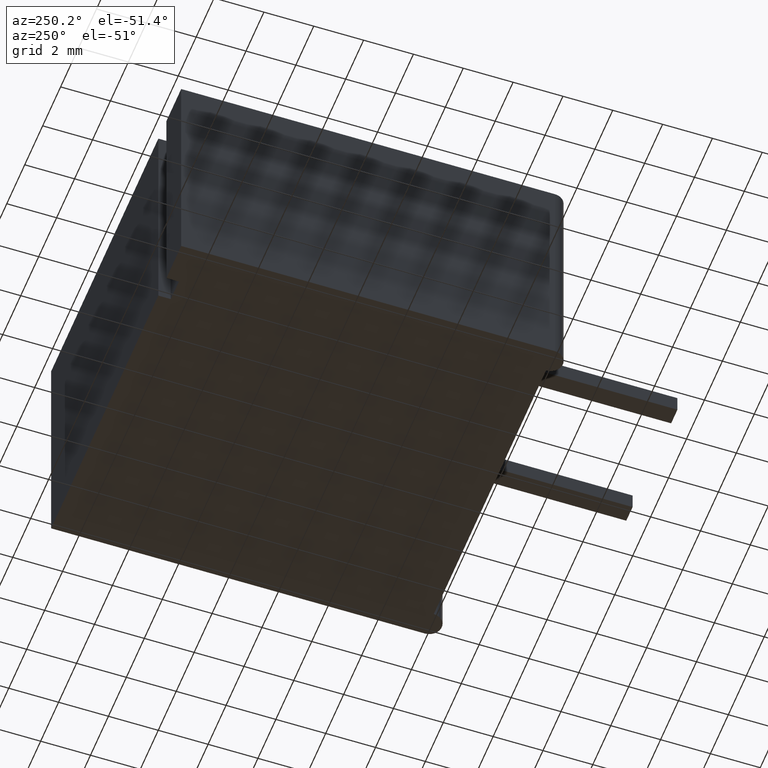
[diagram: clean part render]
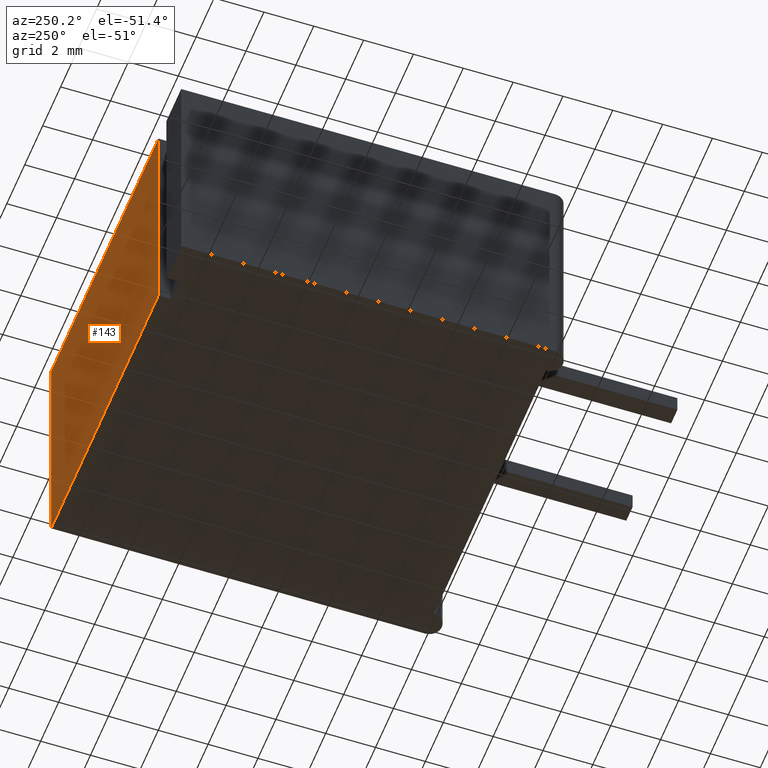
[diagram: same view with one face highlighted and labeled with its STEP entity id]
A machine part, auxiliary view. The second image highlights one B-rep face of the part: STEP entity #143.
In plain terms, the highlighted planar face has unit normal (0, -1, 0).
Its self-contained STEP definition (entity closure, byte-faithful):
#139 = LINE ( 'NONE', #2658, #540 ) ;
#143 = ADVANCED_FACE ( 'NONE', ( #766 ), #1080, .F. ) ;
#315 = CARTESIAN_POINT ( 'NONE',  ( 2.547635000000000500, 15.00000000000000000, 0.0000000000000000000 ) ) ;
#365 = DIRECTION ( 'NONE',  ( -0.0000000000000000000, -0.0000000000000000000, 1.000000000000000000 ) ) ;
#418 = CARTESIAN_POINT ( 'NONE',  ( 0.0000000000000000000, 15.00000000000000000, 9.500000000000000000 ) ) ;
#540 = VECTOR ( 'NONE', #945, 1000.000000000000000 ) ;
#550 = CARTESIAN_POINT ( 'NONE',  ( 2.547635000000000500, 15.00000000000000000, 0.0000000000000000000 ) ) ;
#766 = FACE_OUTER_BOUND ( 'NONE', #1332, .T. ) ;
#945 = DIRECTION ( 'NONE',  ( -0.0000000000000000000, -0.0000000000000000000, -1.000000000000000000 ) ) ;
#961 = ORIENTED_EDGE ( 'NONE', *, *, #1385, .F. ) ;
#974 = ORIENTED_EDGE ( 'NONE', *, *, #2582, .T. ) ;
#1052 = CARTESIAN_POINT ( 'NONE',  ( 14.49999999999999800, 15.00000000000000000, 0.0000000000000000000 ) ) ;
#1080 = PLANE ( 'NONE',  #1935 ) ;
#1087 = VECTOR ( 'NONE', #365, 1000.000000000000000 ) ;
#1184 = CARTESIAN_POINT ( 'NONE',  ( 14.49999999999999800, 15.00000000000000000, 9.500000000000000000 ) ) ;
#1280 = DIRECTION ( 'NONE',  ( 0.0000000000000000000, -1.000000000000000000, 0.0000000000000000000 ) ) ;
#1332 = EDGE_LOOP ( 'NONE', ( #1826, #974, #961, #1514 ) ) ;
#1364 = LINE ( 'NONE', #550, #1087 ) ;
#1385 = EDGE_CURVE ( 'NONE', #2414, #2640, #1734, .T. ) ;
#1505 = VECTOR ( 'NONE', #2558, 1000.000000000000000 ) ;
#1514 = ORIENTED_EDGE ( 'NONE', *, *, #2462, .T. ) ;
#1564 = DIRECTION ( 'NONE',  ( -1.000000000000000000, -0.0000000000000000000, -0.0000000000000000000 ) ) ;
#1734 = LINE ( 'NONE', #418, #1505 ) ;
#1751 = VERTEX_POINT ( 'NONE', #315 ) ;
#1826 = ORIENTED_EDGE ( 'NONE', *, *, #2430, .T. ) ;
#1840 = VECTOR ( 'NONE', #1564, 1000.000000000000000 ) ;
#1935 = AXIS2_PLACEMENT_3D ( 'NONE', #2323, #1280, #2775 ) ;
#2079 = LINE ( 'NONE', #2478, #1840 ) ;
#2174 = VERTEX_POINT ( 'NONE', #1052 ) ;
#2323 = CARTESIAN_POINT ( 'NONE',  ( 0.0000000000000000000, 15.00000000000000000, 9.500000000000000000 ) ) ;
#2414 = VERTEX_POINT ( 'NONE', #1184 ) ;
#2430 = EDGE_CURVE ( 'NONE', #2174, #1751, #2079, .T. ) ;
#2462 = EDGE_CURVE ( 'NONE', #2414, #2174, #139, .T. ) ;
#2478 = CARTESIAN_POINT ( 'NONE',  ( 0.0000000000000000000, 15.00000000000000000, 0.0000000000000000000 ) ) ;
#2558 = DIRECTION ( 'NONE',  ( -1.000000000000000000, -0.0000000000000000000, -0.0000000000000000000 ) ) ;
#2582 = EDGE_CURVE ( 'NONE', #1751, #2640, #1364, .T. ) ;
#2640 = VERTEX_POINT ( 'NONE', #2696 ) ;
#2658 = CARTESIAN_POINT ( 'NONE',  ( 14.49999999999999800, 15.00000000000000000, 9.500000000000000000 ) ) ;
#2696 = CARTESIAN_POINT ( 'NONE',  ( 2.547635000000000500, 15.00000000000000000, 9.500000000000000000 ) ) ;
#2775 = DIRECTION ( 'NONE',  ( 0.0000000000000000000, -0.0000000000000000000, -1.000000000000000000 ) ) ;